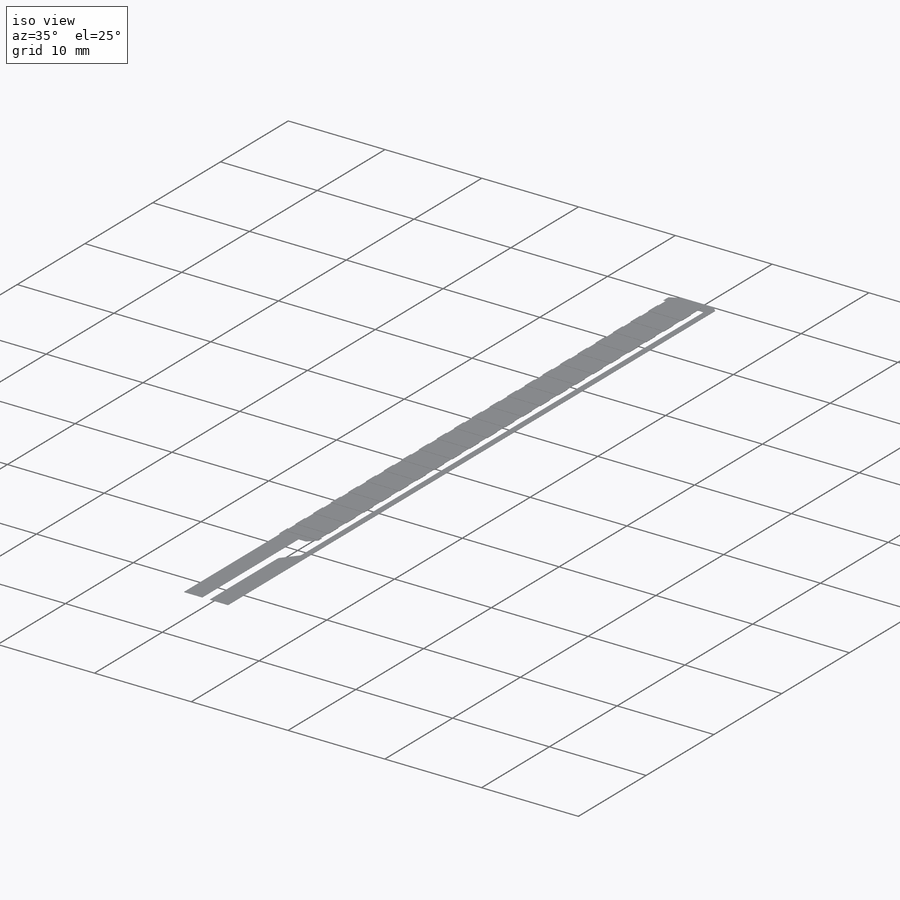
[diagram: iso view]
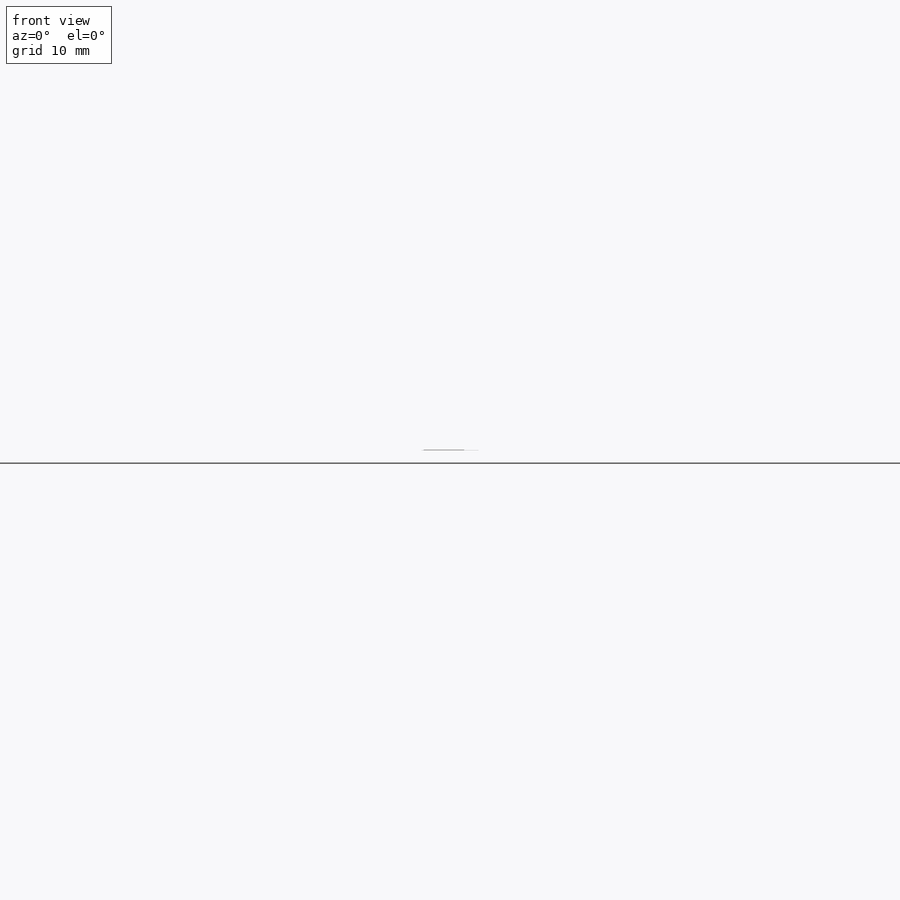
[diagram: front view]
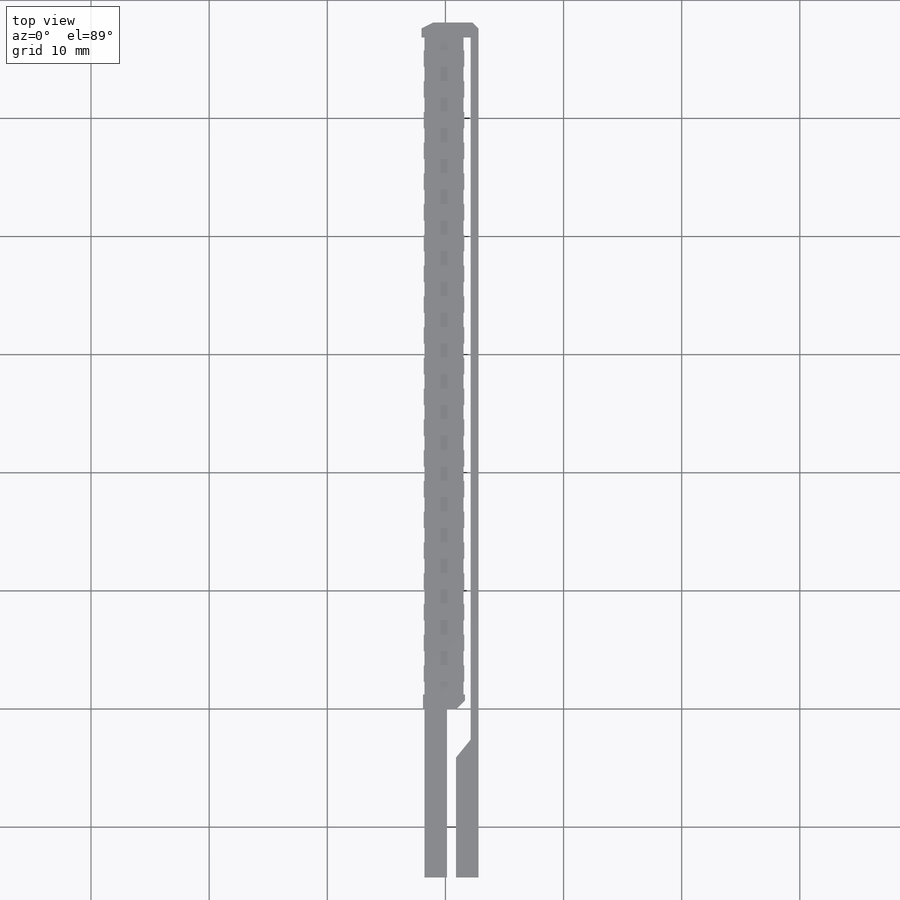
[diagram: top view]
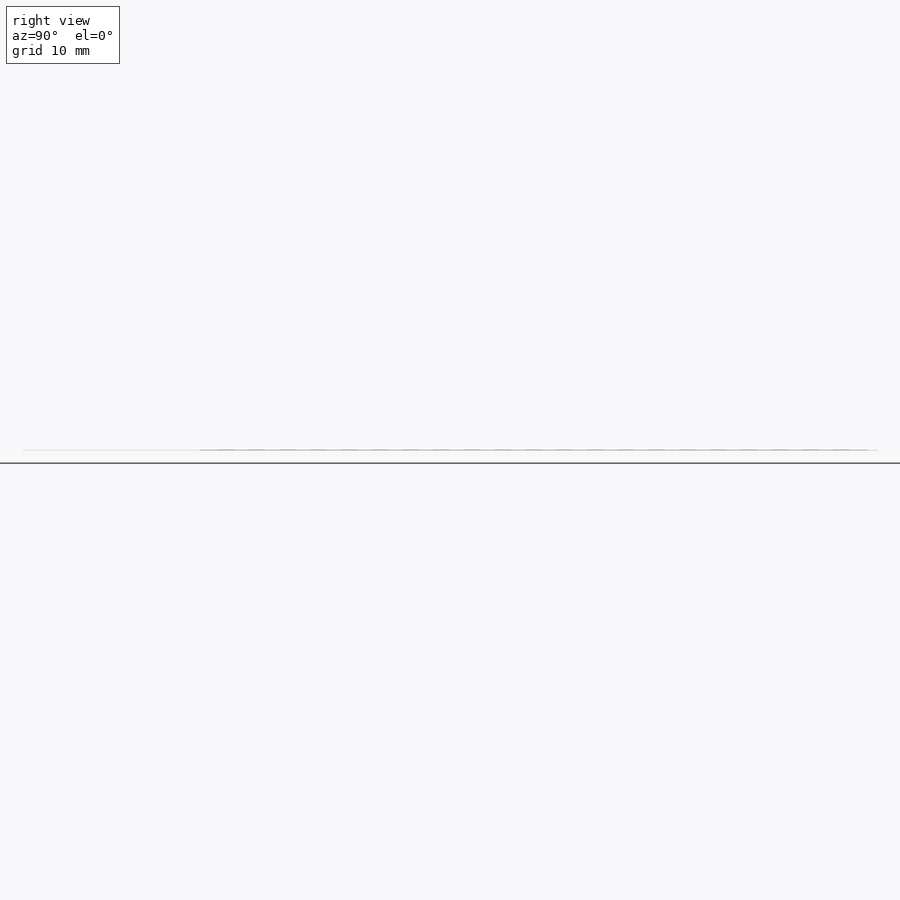
[diagram: right view]
SOLIDWORKS PART (.sldprt)
format: sldprt  version: not decoded by parser v0  size: 477,184 bytes
history: native  units: mm
features: sketch x3, extrude x3, material x1, pattern_linear x1 (+13 scaffold rows collapsed)
feature tree (21):
  scaffold x13  (default folders/planes/origin — collapsed)
  material  "Material <not specified>"
  sketch  "Sketch1"  dims[c1.D1=0.762mm c1.D2=1.905mm c1.D3=10.16mm c1.D4=59.436mm c1.D5=1.27mm c1.D6=72.39mm c1.D7=4.826mm c1.D8=0.508mm c1.D9=0.508mm c2.D5=1.016mm c2.D10=0.508mm c2.D11=1.905mm c2.D12=1.016mm c2.D13=15.494mm c2.D14=1.27mm c3.D13=15.494mm c3.D14=1.27mm c3.D15=3.556mm c3.D16=0.762mm c3.D17=1.524mm c3.D18=0.762mm]
  extrude  "Boss-Extrude1"  Depth=0.0127mm
  sketch  "Sketch2"  dims[D1=3.302mm D2=2.032mm D3=56.642mm D4=14.986mm]
  extrude  "Boss-Extrude2"  Depth=0.0254mm
  sketch  "Sketch3"  dims[D1=3.429mm D2=1.397mm D3=0.0635mm D4=1.5748mm]
  extrude  "Boss-Extrude3"  Depth=0.0381mm
  pattern_linear  "LPattern1"  Count1=21 Count2=1 Spacing1=2.6035mm Spacing2=2.54mm
decode coverage: 7 of 7 modeling features carry decoded parameters
note: suppression state not decoded; provenance and decode notes live in map.json
